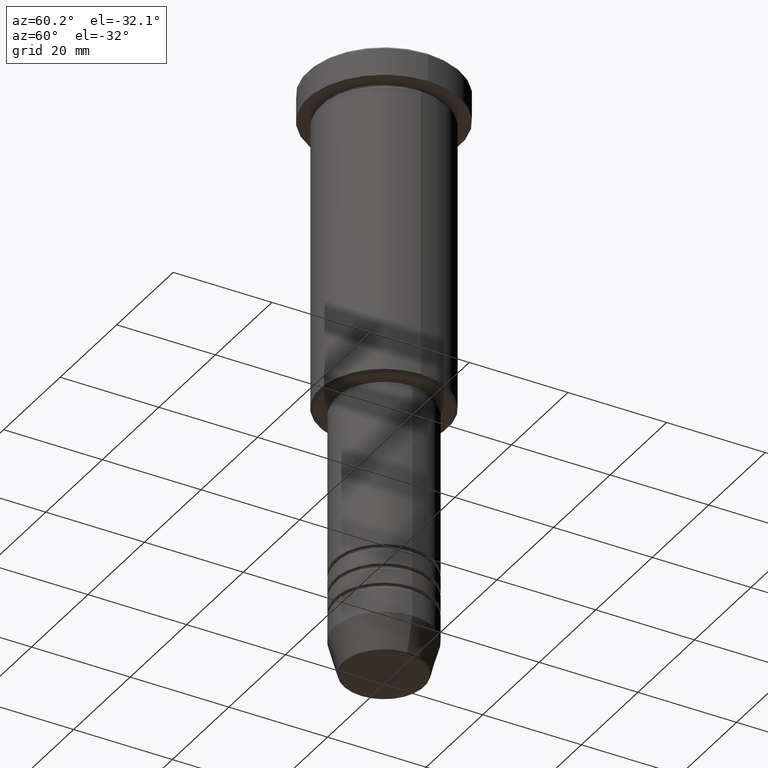
[diagram: clean part render]
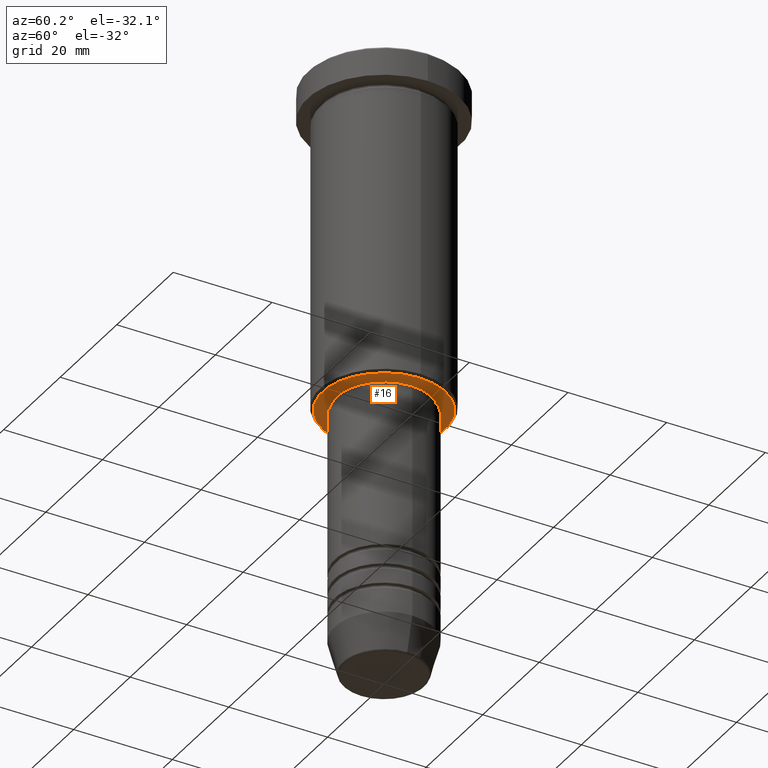
[diagram: same view with one face highlighted and labeled with its STEP entity id]
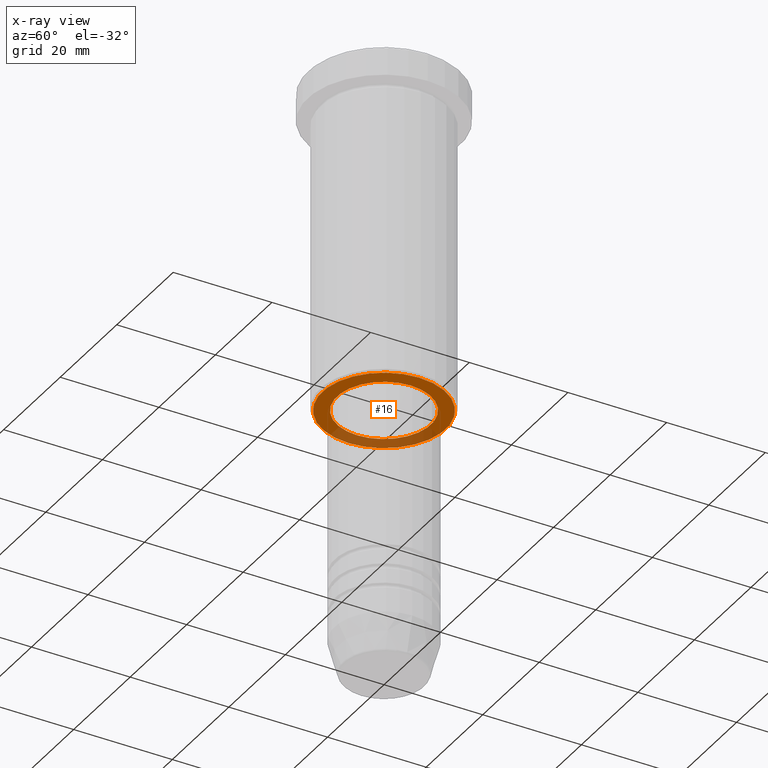
[diagram: x-ray of the same camera — body ghosted, the highlighted face saturated]
A machine part, auxiliary view. The second image highlights one B-rep face of the part: STEP entity #16.
The next image is the same camera in x-ray: the body ghosted, the highlighted face saturated — about 29% of this face is hidden behind the body in this view.
In plain terms, the highlighted planar face has unit normal (0, 0, -1).
Its self-contained STEP definition (entity closure, byte-faithful):
#2 = CARTESIAN_POINT ( 'NONE',  ( 9.500000000000001776, 0.000000000000000000, -66.00000000000000000 ) ) ;
#16 = ADVANCED_FACE ( 'NONE', ( #875, #125 ), #557, .T. ) ;
#19 = AXIS2_PLACEMENT_3D ( 'NONE', #843, #208, #745 ) ;
#22 = DIRECTION ( 'NONE',  ( 1.000000000000000000, 0.000000000000000000, 0.000000000000000000 ) ) ;
#53 = ORIENTED_EDGE ( 'NONE', *, *, #57, .T. ) ;
#57 = EDGE_CURVE ( 'NONE', #268, #171, #1085, .T. ) ;
#103 = CARTESIAN_POINT ( 'NONE',  ( -12.49999999999998401, 1.561424668912874322E-15, -66.00000000000000000 ) ) ;
#125 = FACE_BOUND ( 'NONE', #678, .T. ) ;
#171 = VERTEX_POINT ( 'NONE', #2 ) ;
#189 = CARTESIAN_POINT ( 'NONE',  ( -9.500000000000001776, 1.163414459189985682E-15, -66.00000000000000000 ) ) ;
#201 = EDGE_LOOP ( 'NONE', ( #761, #337 ) ) ;
#204 = EDGE_CURVE ( 'NONE', #171, #268, #452, .T. ) ;
#208 = DIRECTION ( 'NONE',  ( 0.000000000000000000, 0.000000000000000000, -1.000000000000000000 ) ) ;
#246 = EDGE_CURVE ( 'NONE', #1041, #1152, #1139, .T. ) ;
#268 = VERTEX_POINT ( 'NONE', #189 ) ;
#294 = DIRECTION ( 'NONE',  ( -1.000000000000000000, 0.000000000000000000, 0.000000000000000000 ) ) ;
#337 = ORIENTED_EDGE ( 'NONE', *, *, #580, .T. ) ;
#361 = DIRECTION ( 'NONE',  ( 1.000000000000000000, 0.000000000000000000, 0.000000000000000000 ) ) ;
#381 = CARTESIAN_POINT ( 'NONE',  ( 0.000000000000000000, 0.000000000000000000, -66.00000000000000000 ) ) ;
#417 = DIRECTION ( 'NONE',  ( -0.000000000000000000, -0.000000000000000000, 1.000000000000000000 ) ) ;
#452 = CIRCLE ( 'NONE', #1162, 9.500000000000001776 ) ;
#497 = AXIS2_PLACEMENT_3D ( 'NONE', #837, #650, #1024 ) ;
#501 = CIRCLE ( 'NONE', #991, 12.49999999999998401 ) ;
#517 = DIRECTION ( 'NONE',  ( -0.000000000000000000, -0.000000000000000000, 1.000000000000000000 ) ) ;
#557 = PLANE ( 'NONE',  #497 ) ;
#580 = EDGE_CURVE ( 'NONE', #1152, #1041, #501, .T. ) ;
#600 = AXIS2_PLACEMENT_3D ( 'NONE', #850, #417, #22 ) ;
#608 = CARTESIAN_POINT ( 'NONE',  ( 0.000000000000000000, 0.000000000000000000, -66.00000000000000000 ) ) ;
#650 = DIRECTION ( 'NONE',  ( 0.000000000000000000, 0.000000000000000000, -1.000000000000000000 ) ) ;
#675 = CARTESIAN_POINT ( 'NONE',  ( 12.49999999999998401, 0.000000000000000000, -66.00000000000000000 ) ) ;
#678 = EDGE_LOOP ( 'NONE', ( #977, #53 ) ) ;
#745 = DIRECTION ( 'NONE',  ( -1.000000000000000000, 0.000000000000000000, 0.000000000000000000 ) ) ;
#754 = DIRECTION ( 'NONE',  ( 0.000000000000000000, 0.000000000000000000, -1.000000000000000000 ) ) ;
#761 = ORIENTED_EDGE ( 'NONE', *, *, #246, .T. ) ;
#837 = CARTESIAN_POINT ( 'NONE',  ( 0.000000000000000000, 13.00000000000000000, -66.00000000000000000 ) ) ;
#843 = CARTESIAN_POINT ( 'NONE',  ( 0.000000000000000000, 0.000000000000000000, -66.00000000000000000 ) ) ;
#850 = CARTESIAN_POINT ( 'NONE',  ( 0.000000000000000000, 0.000000000000000000, -66.00000000000000000 ) ) ;
#875 = FACE_OUTER_BOUND ( 'NONE', #201, .T. ) ;
#977 = ORIENTED_EDGE ( 'NONE', *, *, #204, .T. ) ;
#991 = AXIS2_PLACEMENT_3D ( 'NONE', #381, #754, #294 ) ;
#1024 = DIRECTION ( 'NONE',  ( -1.000000000000000000, 0.000000000000000000, -0.000000000000000000 ) ) ;
#1041 = VERTEX_POINT ( 'NONE', #675 ) ;
#1085 = CIRCLE ( 'NONE', #600, 9.500000000000001776 ) ;
#1139 = CIRCLE ( 'NONE', #19, 12.49999999999998401 ) ;
#1152 = VERTEX_POINT ( 'NONE', #103 ) ;
#1162 = AXIS2_PLACEMENT_3D ( 'NONE', #608, #517, #361 ) ;